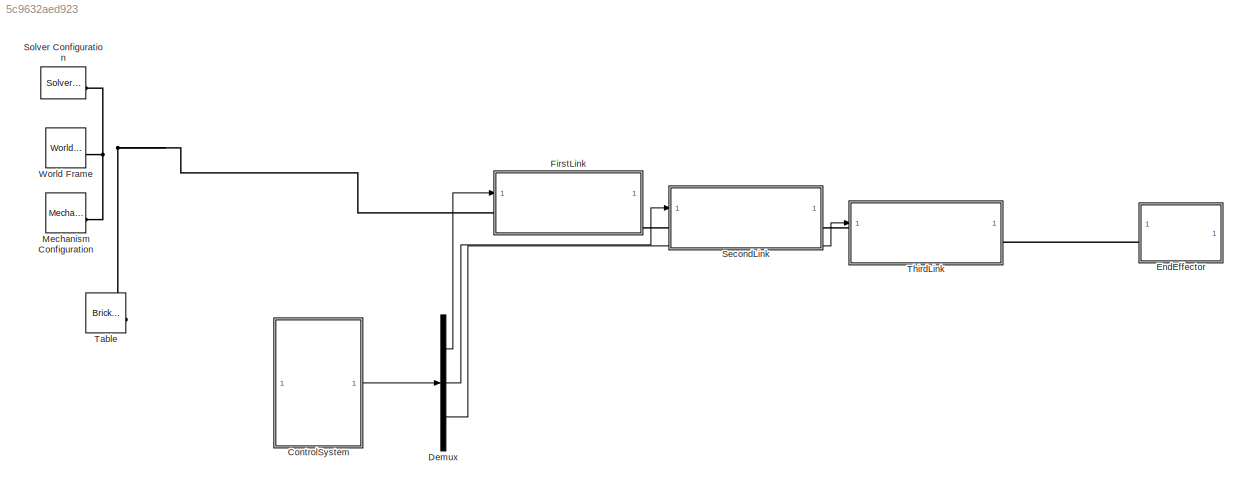
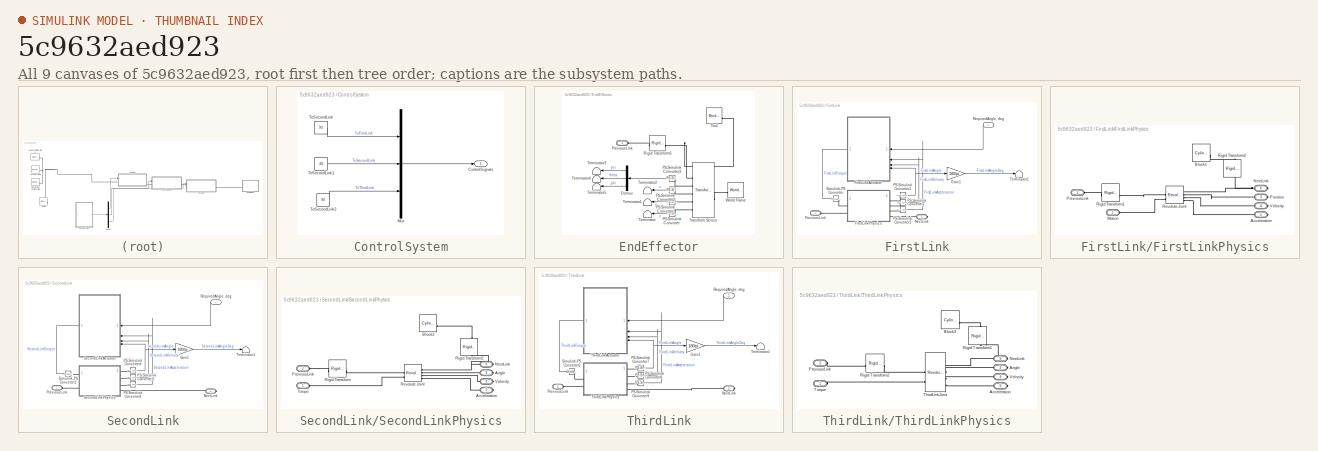
[diagram: thumbnail index - all 9 canvases of the model, root first then tree order]
MODEL slx_5c9632aed923
KIND model
CONFIG AbsTol = auto
CONFIG EnableMultiTasking = off
CONFIG FixedStep = auto
CONFIG MaxStep = 0.01
CONFIG MinStep = auto
CONFIG RelTol = 1e-3
CONFIG SampleTimeConstraint = Unconstrained
CONFIG SolverName = ode23t
CONFIG StartTime = 0.0
CONFIG StopTime = 5
BLOCK [SubSystem] ControlSystem
BLOCK [Outport] ControlSystem/ControlSignals
  NameLocation = right
BLOCK [Mux] ControlSystem/Mux
  DisplayOption = bar
  Inputs = 3
BLOCK [Constant] ControlSystem/ToSecondLink
  NameLocation = left
  Value = 90
BLOCK [Constant] ControlSystem/ToSecondLink1
  NameLocation = left
  Value = -90
BLOCK [Constant] ControlSystem/ToSecondLink2
  NameLocation = left
  Value = 90
BLOCK [Demux] Demux
  Outputs = 3
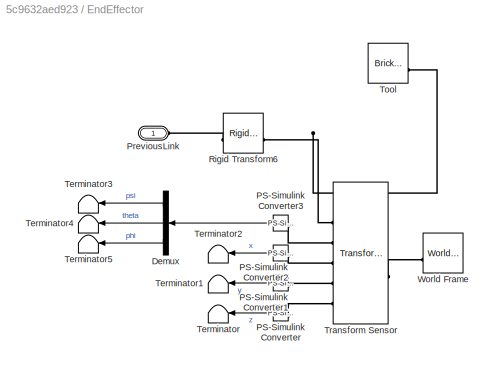
BLOCK [SubSystem] EndEffector
BLOCK [Demux] EndEffector/Demux
  NameLocation = top
  Outputs = 3
BLOCK [Reference] EndEffector/PS-Simulink Converter  REF=nesl_utility/PS-Simulink
Converter
  NameLocation = top
  SourceBlock = nesl_utility/PS-Simulink\nConverter
  SourceType = PS-Simulink\nConverter
BLOCK [Reference] EndEffector/PS-Simulink Converter1  REF=nesl_utility/PS-Simulink
Converter
  NameLocation = top
  SourceBlock = nesl_utility/PS-Simulink\nConverter
  SourceType = PS-Simulink\nConverter
BLOCK [Reference] EndEffector/PS-Simulink Converter2  REF=nesl_utility/PS-Simulink
Converter
  NameLocation = top
  SourceBlock = nesl_utility/PS-Simulink\nConverter
  SourceType = PS-Simulink\nConverter
BLOCK [Reference] EndEffector/PS-Simulink Converter3  REF=nesl_utility/PS-Simulink
Converter
  NameLocation = top
  SourceBlock = nesl_utility/PS-Simulink\nConverter
  SourceType = PS-Simulink\nConverter
BLOCK [PMIOPort] EndEffector/PreviousLink
  Side = Left
BLOCK [Reference] EndEffector/Rigid Transform6  REF=sm_lib/Frames and
Transforms/Rigid
Transform
  SourceBlock = sm_lib/Frames and\nTransforms/Rigid\nTransform
  SourceType = Rigid\nTransform
BLOCK [Terminator] EndEffector/Terminator
  NameLocation = top
BLOCK [Terminator] EndEffector/Terminator1
  NameLocation = top
BLOCK [Terminator] EndEffector/Terminator2
  NameLocation = top
BLOCK [Terminator] EndEffector/Terminator3
  NameLocation = top
BLOCK [Terminator] EndEffector/Terminator4
  NameLocation = top
BLOCK [Terminator] EndEffector/Terminator5
  NameLocation = top
BLOCK [Reference] EndEffector/Tool  REF=sm_lib/Body Elements/Brick Solid
  SourceBlock = sm_lib/Body Elements/Brick Solid
  SourceType = Brick Solid
BLOCK [Reference] EndEffector/Transform Sensor  REF=sm_lib/Frames and
Transforms/Transform
Sensor
  NameLocation = top
  SourceBlock = sm_lib/Frames and\nTransforms/Transform\nSensor
  SourceType = Transform\nSensor
BLOCK [Reference] EndEffector/World Frame  REF=sm_lib/Frames and
Transforms/World Frame
  NameLocation = top
  SourceBlock = sm_lib/Frames and\nTransforms/World Frame
  SourceType = World Frame
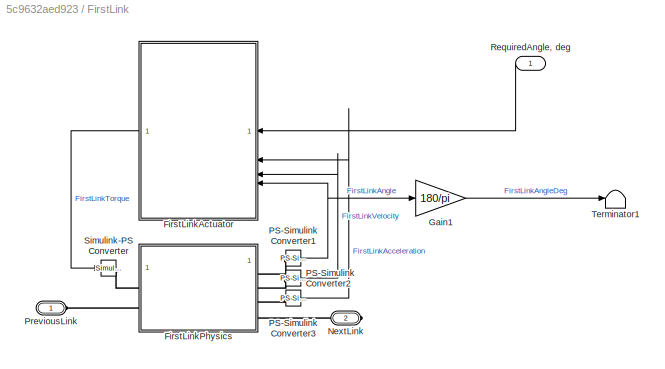
BLOCK [SubSystem] FirstLink
  PortSchema = {"entries":[{"content":{"sides":[{"content":{"connectorIds":["LConn1","In1"]},"type":"ConnectorPlacement.EquallySpacedRectSide","uuid":"59137c6e-e982-4e9a-8887-9c851b27c4d0"},{"content":{"connectorIds":["RConn1"],"side":"RIGHT"},"type":"ConnectorPlacement.EquallySpacedRectSide","uuid":"3006ed02-36e2-47dc-847a-44ef2bf55218"},{"content":{"side":"TOP"},"type":"ConnectorPlacement.EquallySpacedRectSide...<+233ch>  <repeated x3 — deduplicated; at blocks: FirstLink, SecondLink, ThirdLink>
BLOCK [SubSystem] FirstLink/FirstLinkActuator
  K1 = K11
  K2 = K21
  K3 = K31
  K4 = K41
  K5 = K51
  NameLocation = top
  ReferencedSubsystem = Actuator
  TreatAsAtomicUnit = on
BLOCK [SubSystem] FirstLink/FirstLinkPhysics
BLOCK [PMIOPort] FirstLink/FirstLinkPhysics/Acceleration
  NameLocation = right
  Port = 5
  Side = Right
BLOCK [Reference] FirstLink/FirstLinkPhysics/Block1  REF=sm_lib/Body Elements/Cylindrical Solid
  SourceBlock = sm_lib/Body Elements/Cylindrical Solid
  SourceType = Cylindrical Solid
BLOCK [PMIOPort] FirstLink/FirstLinkPhysics/Motion
  Side = Left
BLOCK [PMIOPort] FirstLink/FirstLinkPhysics/NextLink
  NameLocation = right
  Port = 6
  Side = Right
BLOCK [PMIOPort] FirstLink/FirstLinkPhysics/Position
  NameLocation = right
  Port = 3
  Side = Right
BLOCK [PMIOPort] FirstLink/FirstLinkPhysics/PreviousLink
  Port = 2
  Side = Left
BLOCK [Reference] FirstLink/FirstLinkPhysics/Revolute Joint  REF=sm_lib/Joints/Revolute Joint
  SourceBlock = sm_lib/Joints/Revolute Joint
  SourceType = Revolute Joint
BLOCK [Reference] FirstLink/FirstLinkPhysics/Rigid Transform1  REF=sm_lib/Frames and
Transforms/Rigid
Transform
  NameLocation = top
  SourceBlock = sm_lib/Frames and\nTransforms/Rigid\nTransform
  SourceType = Rigid\nTransform
BLOCK [Reference] FirstLink/FirstLinkPhysics/Rigid Transform2  REF=sm_lib/Frames and
Transforms/Rigid
Transform
  NameLocation = right
  SourceBlock = sm_lib/Frames and\nTransforms/Rigid\nTransform
  SourceType = Rigid\nTransform
BLOCK [PMIOPort] FirstLink/FirstLinkPhysics/Velocity
  NameLocation = right
  Port = 4
  Side = Right
BLOCK [Gain] FirstLink/Gain1
  Gain = 180/pi
BLOCK [PMIOPort] FirstLink/NextLink
  Port = 2
  Side = Right
BLOCK [Reference] FirstLink/PS-Simulink Converter1  REF=nesl_utility/PS-Simulink
Converter
  SourceBlock = nesl_utility/PS-Simulink\nConverter
  SourceType = PS-Simulink\nConverter
BLOCK [Reference] FirstLink/PS-Simulink Converter2  REF=nesl_utility/PS-Simulink
Converter
  SourceBlock = nesl_utility/PS-Simulink\nConverter
  SourceType = PS-Simulink\nConverter
BLOCK [Reference] FirstLink/PS-Simulink Converter3  REF=nesl_utility/PS-Simulink
Converter
  SourceBlock = nesl_utility/PS-Simulink\nConverter
  SourceType = PS-Simulink\nConverter
BLOCK [PMIOPort] FirstLink/PreviousLink
  Side = Left
BLOCK [Inport] FirstLink/RequiredAngle, deg
  NameLocation = top
BLOCK [Reference] FirstLink/Simulink-PS Converter  REF=nesl_utility/Simulink-PS
Converter
  SourceBlock = nesl_utility/Simulink-PS\nConverter
  SourceType = Simulink-PS\nConverter
BLOCK [Terminator] FirstLink/Terminator1
BLOCK [Reference] Mechanism Configuration  REF=sm_lib/Utilities/Mechanism
Configuration
  SourceBlock = sm_lib/Utilities/Mechanism\nConfiguration
  SourceType = Mechanism\nConfiguration
BLOCK [SubSystem] SecondLink
BLOCK [Gain] SecondLink/Gain1
  Gain = 180/pi
BLOCK [PMIOPort] SecondLink/NextLink
  Port = 2
  Side = Right
BLOCK [Reference] SecondLink/PS-Simulink Converter4  REF=nesl_utility/PS-Simulink
Converter
  SourceBlock = nesl_utility/PS-Simulink\nConverter
  SourceType = PS-Simulink\nConverter
BLOCK [Reference] SecondLink/PS-Simulink Converter5  REF=nesl_utility/PS-Simulink
Converter
  SourceBlock = nesl_utility/PS-Simulink\nConverter
  SourceType = PS-Simulink\nConverter
BLOCK [Reference] SecondLink/PS-Simulink Converter6  REF=nesl_utility/PS-Simulink
Converter
  SourceBlock = nesl_utility/PS-Simulink\nConverter
  SourceType = PS-Simulink\nConverter
BLOCK [PMIOPort] SecondLink/PreviousLink
  Side = Left
BLOCK [Inport] SecondLink/RequiredAngle, deg
  NameLocation = top
BLOCK [SubSystem] SecondLink/SecondLinkActuator
  K1 = K12
  K2 = K22
  K3 = K32
  K4 = K42
  K5 = K52
  NameLocation = top
  ReferencedSubsystem = Actuator
  TreatAsAtomicUnit = on
BLOCK [SubSystem] SecondLink/SecondLinkPhysics
BLOCK [PMIOPort] SecondLink/SecondLinkPhysics/Acceleration
  NameLocation = right
  Port = 5
  Side = Right
BLOCK [PMIOPort] SecondLink/SecondLinkPhysics/Angle
  NameLocation = right
  Port = 3
  Side = Right
BLOCK [Reference] SecondLink/SecondLinkPhysics/Block2  REF=sm_lib/Body Elements/Cylindrical Solid
  SourceBlock = sm_lib/Body Elements/Cylindrical Solid
  SourceType = Cylindrical Solid
BLOCK [PMIOPort] SecondLink/SecondLinkPhysics/NextLink
  NameLocation = right
  Port = 6
  Side = Right
BLOCK [PMIOPort] SecondLink/SecondLinkPhysics/PreviousLink
  Port = 2
  Side = Left
BLOCK [Reference] SecondLink/SecondLinkPhysics/Revolute Joint  REF=sm_lib/Joints/Revolute Joint
  SourceBlock = sm_lib/Joints/Revolute Joint
  SourceType = Revolute Joint
BLOCK [Reference] SecondLink/SecondLinkPhysics/Rigid Transform  REF=sm_lib/Frames and
Transforms/Rigid
Transform
  SourceBlock = sm_lib/Frames and\nTransforms/Rigid\nTransform
  SourceType = Rigid\nTransform
BLOCK [Reference] SecondLink/SecondLinkPhysics/Rigid Transform2  REF=sm_lib/Frames and
Transforms/Rigid
Transform
  NameLocation = right
  SourceBlock = sm_lib/Frames and\nTransforms/Rigid\nTransform
  SourceType = Rigid\nTransform
BLOCK [PMIOPort] SecondLink/SecondLinkPhysics/Torque
  Side = Left
BLOCK [PMIOPort] SecondLink/SecondLinkPhysics/Velocity
  NameLocation = right
  Port = 4
  Side = Right
BLOCK [Reference] SecondLink/Simulink-PS Converter1  REF=nesl_utility/Simulink-PS
Converter
  SourceBlock = nesl_utility/Simulink-PS\nConverter
  SourceType = Simulink-PS\nConverter
BLOCK [Terminator] SecondLink/Terminator1
BLOCK [Reference] Solver Configuration  REF=nesl_utility/Solver
Configuration
  SourceBlock = nesl_utility/Solver\nConfiguration
  SourceType = Solver\nConfiguration
BLOCK [Reference] Table  REF=sm_lib/Body Elements/Brick Solid
  SourceBlock = sm_lib/Body Elements/Brick Solid
  SourceType = Brick Solid
BLOCK [SubSystem] ThirdLink
BLOCK [Gain] ThirdLink/Gain1
  Gain = 180/pi
BLOCK [PMIOPort] ThirdLink/NextLink
  Port = 2
  Side = Right
BLOCK [Reference] ThirdLink/PS-Simulink Converter7  REF=nesl_utility/PS-Simulink
Converter
  SourceBlock = nesl_utility/PS-Simulink\nConverter
  SourceType = PS-Simulink\nConverter
BLOCK [Reference] ThirdLink/PS-Simulink Converter8  REF=nesl_utility/PS-Simulink
Converter
  SourceBlock = nesl_utility/PS-Simulink\nConverter
  SourceType = PS-Simulink\nConverter
BLOCK [Reference] ThirdLink/PS-Simulink Converter9  REF=nesl_utility/PS-Simulink
Converter
  SourceBlock = nesl_utility/PS-Simulink\nConverter
  SourceType = PS-Simulink\nConverter
BLOCK [PMIOPort] ThirdLink/PreviousLink
  Side = Left
BLOCK [Inport] ThirdLink/RequiredAngle, deg
  NameLocation = top
BLOCK [Reference] ThirdLink/Simulink-PS Converter2  REF=nesl_utility/Simulink-PS
Converter
  SourceBlock = nesl_utility/Simulink-PS\nConverter
  SourceType = Simulink-PS\nConverter
BLOCK [Terminator] ThirdLink/Terminator1
BLOCK [SubSystem] ThirdLink/ThirdLinkActuator
  K1 = K13
  K2 = K23
  K3 = K33
  K4 = K43
  K5 = K53
  NameLocation = top
  ReferencedSubsystem = Actuator
  TreatAsAtomicUnit = on
BLOCK [SubSystem] ThirdLink/ThirdLinkPhysics
BLOCK [PMIOPort] ThirdLink/ThirdLinkPhysics/Acceleration
  NameLocation = right
  Port = 5
  Side = Right
BLOCK [PMIOPort] ThirdLink/ThirdLinkPhysics/Angle
  NameLocation = right
  Port = 3
  Side = Right
BLOCK [Reference] ThirdLink/ThirdLinkPhysics/Block3  REF=sm_lib/Body Elements/Cylindrical Solid
  SourceBlock = sm_lib/Body Elements/Cylindrical Solid
  SourceType = Cylindrical Solid
BLOCK [PMIOPort] ThirdLink/ThirdLinkPhysics/NextLink
  NameLocation = right
  Port = 6
  Side = Right
BLOCK [PMIOPort] ThirdLink/ThirdLinkPhysics/PreviousLink
  Port = 2
  Side = Left
BLOCK [Reference] ThirdLink/ThirdLinkPhysics/Rigid Transform1  REF=sm_lib/Frames and
Transforms/Rigid
Transform
  NameLocation = right
  SourceBlock = sm_lib/Frames and\nTransforms/Rigid\nTransform
  SourceType = Rigid\nTransform
BLOCK [Reference] ThirdLink/ThirdLinkPhysics/Rigid Transform2  REF=sm_lib/Frames and
Transforms/Rigid
Transform
  SourceBlock = sm_lib/Frames and\nTransforms/Rigid\nTransform
  SourceType = Rigid\nTransform
BLOCK [Reference] ThirdLink/ThirdLinkPhysics/ThirdLinkJoint  REF=sm_lib/Joints/Revolute Joint
  SourceBlock = sm_lib/Joints/Revolute Joint
  SourceType = Revolute Joint
BLOCK [PMIOPort] ThirdLink/ThirdLinkPhysics/Torque
  Side = Left
BLOCK [PMIOPort] ThirdLink/ThirdLinkPhysics/Velocity
  NameLocation = right
  Port = 4
  Side = Right
BLOCK [Reference] World Frame  REF=sm_lib/Frames and
Transforms/World Frame
  SourceBlock = sm_lib/Frames and\nTransforms/World Frame
  SourceType = World Frame
LINE ControlSystem/Mux:1 -> ControlSystem/ControlSignals:1
LINE ControlSystem/ToSecondLink1:1 -> ControlSystem/Mux:2
LINE ControlSystem/ToSecondLink2:1 -> ControlSystem/Mux:3
LINE ControlSystem/ToSecondLink:1 -> ControlSystem/Mux:1
LINE ControlSystem:1 -> Demux:1
LINE Demux:1 -> FirstLink:1
LINE Demux:2 -> SecondLink:1
LINE Demux:3 -> ThirdLink:1
LINE EndEffector/Demux:1 -> EndEffector/Terminator3:1
LINE EndEffector/Demux:2 -> EndEffector/Terminator4:1
LINE EndEffector/Demux:3 -> EndEffector/Terminator5:1
LINE EndEffector/PS-Simulink Converter1:1 -> EndEffector/Terminator1:1
LINE EndEffector/PS-Simulink Converter2:1 -> EndEffector/Terminator2:1
LINE EndEffector/PS-Simulink Converter3:1 -> EndEffector/Demux:1
LINE EndEffector/PS-Simulink Converter:1 -> EndEffector/Terminator:1
LINE FirstLink/FirstLinkActuator:1 -> FirstLink/Simulink-PS Converter:1
LINE FirstLink/Gain1:1 -> FirstLink/Terminator1:1
NET FirstLink/PS-Simulink Converter1:1 -> FirstLink/FirstLinkActuator:4, FirstLink/Gain1:1
LINE FirstLink/PS-Simulink Converter2:1 -> FirstLink/FirstLinkActuator:3
LINE FirstLink/PS-Simulink Converter3:1 -> FirstLink/FirstLinkActuator:2
LINE FirstLink/RequiredAngle, deg:1 -> FirstLink/FirstLinkActuator:1
LINE SecondLink/Gain1:1 -> SecondLink/Terminator1:1
NET SecondLink/PS-Simulink Converter4:1 -> SecondLink/Gain1:1, SecondLink/SecondLinkActuator:4
LINE SecondLink/PS-Simulink Converter5:1 -> SecondLink/SecondLinkActuator:3
LINE SecondLink/PS-Simulink Converter6:1 -> SecondLink/SecondLinkActuator:2
LINE SecondLink/RequiredAngle, deg:1 -> SecondLink/SecondLinkActuator:1
LINE SecondLink/SecondLinkActuator:1 -> SecondLink/Simulink-PS Converter1:1
LINE ThirdLink/Gain1:1 -> ThirdLink/Terminator1:1
NET ThirdLink/PS-Simulink Converter7:1 -> ThirdLink/Gain1:1, ThirdLink/ThirdLinkActuator:4
LINE ThirdLink/PS-Simulink Converter8:1 -> ThirdLink/ThirdLinkActuator:3
LINE ThirdLink/PS-Simulink Converter9:1 -> ThirdLink/ThirdLinkActuator:2
LINE ThirdLink/RequiredAngle, deg:1 -> ThirdLink/ThirdLinkActuator:1
LINE ThirdLink/ThirdLinkActuator:1 -> ThirdLink/Simulink-PS Converter2:1
PLINE EndEffector/PS-Simulink Converter1:LConn1 -- EndEffector/Transform Sensor:RConn4
PLINE EndEffector/PS-Simulink Converter2:LConn1 -- EndEffector/Transform Sensor:RConn3
PLINE EndEffector/PS-Simulink Converter3:LConn1 -- EndEffector/Transform Sensor:RConn2
PLINE EndEffector/PS-Simulink Converter:LConn1 -- EndEffector/Transform Sensor:RConn5
PLINE EndEffector/PreviousLink:RConn1 -- EndEffector/Rigid Transform6:LConn1
PNET net1: EndEffector/Rigid Transform6:RConn1 -- EndEffector/Tool:RConn1 -- EndEffector/Transform Sensor:RConn1
PLINE EndEffector/Transform Sensor:LConn1 -- EndEffector/World Frame:RConn1
PLINE EndEffector:LConn1 -- ThirdLink:RConn1
PLINE FirstLink/FirstLinkPhysics/Acceleration:RConn1 -- FirstLink/FirstLinkPhysics/Revolute Joint:RConn4
PLINE FirstLink/FirstLinkPhysics/Block1:RConn1 -- FirstLink/FirstLinkPhysics/Rigid Transform2:LConn1
PLINE FirstLink/FirstLinkPhysics/Motion:RConn1 -- FirstLink/FirstLinkPhysics/Revolute Joint:LConn2
PNET net2: FirstLink/FirstLinkPhysics/NextLink:RConn1 -- FirstLink/FirstLinkPhysics/Revolute Joint:RConn1 -- FirstLink/FirstLinkPhysics/Rigid Transform2:RConn1
PLINE FirstLink/FirstLinkPhysics/Position:RConn1 -- FirstLink/FirstLinkPhysics/Revolute Joint:RConn2
PLINE FirstLink/FirstLinkPhysics/PreviousLink:RConn1 -- FirstLink/FirstLinkPhysics/Rigid Transform1:LConn1
PLINE FirstLink/FirstLinkPhysics/Revolute Joint:LConn1 -- FirstLink/FirstLinkPhysics/Rigid Transform1:RConn1
PLINE FirstLink/FirstLinkPhysics/Revolute Joint:RConn3 -- FirstLink/FirstLinkPhysics/Velocity:RConn1
PLINE FirstLink/FirstLinkPhysics:LConn1 -- FirstLink/Simulink-PS Converter:RConn1
PLINE FirstLink/FirstLinkPhysics:LConn2 -- FirstLink/PreviousLink:RConn1
PLINE FirstLink/FirstLinkPhysics:RConn1 -- FirstLink/PS-Simulink Converter1:LConn1
PLINE FirstLink/FirstLinkPhysics:RConn2 -- FirstLink/PS-Simulink Converter2:LConn1
PLINE FirstLink/FirstLinkPhysics:RConn3 -- FirstLink/PS-Simulink Converter3:LConn1
PLINE FirstLink/FirstLinkPhysics:RConn4 -- FirstLink/NextLink:RConn1
PNET net3: FirstLink:LConn1 -- Mechanism Configuration:RConn1 -- Solver Configuration:RConn1 -- Table:RConn1 -- World Frame:RConn1
PLINE FirstLink:RConn1 -- SecondLink:LConn1
PLINE SecondLink/NextLink:RConn1 -- SecondLink/SecondLinkPhysics:RConn4
PLINE SecondLink/PS-Simulink Converter4:LConn1 -- SecondLink/SecondLinkPhysics:RConn1
PLINE SecondLink/PS-Simulink Converter5:LConn1 -- SecondLink/SecondLinkPhysics:RConn2
PLINE SecondLink/PS-Simulink Converter6:LConn1 -- SecondLink/SecondLinkPhysics:RConn3
PLINE SecondLink/PreviousLink:RConn1 -- SecondLink/SecondLinkPhysics:LConn2
PLINE SecondLink/SecondLinkPhysics/Acceleration:RConn1 -- SecondLink/SecondLinkPhysics/Revolute Joint:RConn4
PLINE SecondLink/SecondLinkPhysics/Angle:RConn1 -- SecondLink/SecondLinkPhysics/Revolute Joint:RConn2
PLINE SecondLink/SecondLinkPhysics/Block2:RConn1 -- SecondLink/SecondLinkPhysics/Rigid Transform2:RConn1
PNET net4: SecondLink/SecondLinkPhysics/NextLink:RConn1 -- SecondLink/SecondLinkPhysics/Revolute Joint:RConn1 -- SecondLink/SecondLinkPhysics/Rigid Transform2:LConn1
PLINE SecondLink/SecondLinkPhysics/PreviousLink:RConn1 -- SecondLink/SecondLinkPhysics/Rigid Transform:LConn1
PLINE SecondLink/SecondLinkPhysics/Revolute Joint:LConn1 -- SecondLink/SecondLinkPhysics/Rigid Transform:RConn1
PLINE SecondLink/SecondLinkPhysics/Revolute Joint:LConn2 -- SecondLink/SecondLinkPhysics/Torque:RConn1
PLINE SecondLink/SecondLinkPhysics/Revolute Joint:RConn3 -- SecondLink/SecondLinkPhysics/Velocity:RConn1
PLINE SecondLink/SecondLinkPhysics:LConn1 -- SecondLink/Simulink-PS Converter1:RConn1
PLINE SecondLink:RConn1 -- ThirdLink:LConn1
PLINE ThirdLink/NextLink:RConn1 -- ThirdLink/ThirdLinkPhysics:RConn4
PLINE ThirdLink/PS-Simulink Converter7:LConn1 -- ThirdLink/ThirdLinkPhysics:RConn1
PLINE ThirdLink/PS-Simulink Converter8:LConn1 -- ThirdLink/ThirdLinkPhysics:RConn2
PLINE ThirdLink/PS-Simulink Converter9:LConn1 -- ThirdLink/ThirdLinkPhysics:RConn3
PLINE ThirdLink/PreviousLink:RConn1 -- ThirdLink/ThirdLinkPhysics:LConn2
PLINE ThirdLink/Simulink-PS Converter2:RConn1 -- ThirdLink/ThirdLinkPhysics:LConn1
PLINE ThirdLink/ThirdLinkPhysics/Acceleration:RConn1 -- ThirdLink/ThirdLinkPhysics/ThirdLinkJoint:RConn4
PLINE ThirdLink/ThirdLinkPhysics/Angle:RConn1 -- ThirdLink/ThirdLinkPhysics/ThirdLinkJoint:RConn2
PLINE ThirdLink/ThirdLinkPhysics/Block3:RConn1 -- ThirdLink/ThirdLinkPhysics/Rigid Transform1:RConn1
PNET net5: ThirdLink/ThirdLinkPhysics/NextLink:RConn1 -- ThirdLink/ThirdLinkPhysics/Rigid Transform1:LConn1 -- ThirdLink/ThirdLinkPhysics/ThirdLinkJoint:RConn1
PLINE ThirdLink/ThirdLinkPhysics/PreviousLink:RConn1 -- ThirdLink/ThirdLinkPhysics/Rigid Transform2:LConn1
PLINE ThirdLink/ThirdLinkPhysics/Rigid Transform2:RConn1 -- ThirdLink/ThirdLinkPhysics/ThirdLinkJoint:LConn1
PLINE ThirdLink/ThirdLinkPhysics/ThirdLinkJoint:LConn2 -- ThirdLink/ThirdLinkPhysics/Torque:RConn1
PLINE ThirdLink/ThirdLinkPhysics/ThirdLinkJoint:RConn3 -- ThirdLink/ThirdLinkPhysics/Velocity:RConn1
note: NET lines group one-source signal fan-out (src -> all destinations, sorted); 1:1 wires keep LINE; PNET lines group multi-terminal physical nets as a canonical sorted terminal list (undirected conserving connections); 2-terminal nets keep the pairwise PLINE form
